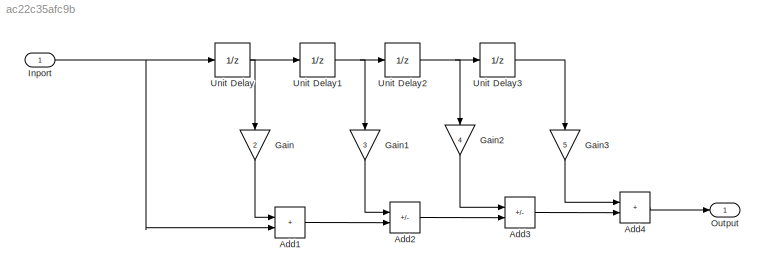
MODEL slx_ac22c35afc9b
KIND model
CONFIG AbsTol = auto
CONFIG EnableMultiTasking = off
CONFIG FixedStep = auto
CONFIG MaxStep = auto
CONFIG MinStep = auto
CONFIG RelTol = 1e-3
CONFIG SampleTimeConstraint = Unconstrained
CONFIG SolverName = VariableStepAuto
CONFIG StartTime = 0.0
CONFIG StopTime = 10.0
BLOCK [Sum] Add1
  IconShape = rectangular
  Ports = [2, 1]
BLOCK [Sum] Add2
  IconShape = rectangular
  Inputs = +-
  Ports = [2, 1]
BLOCK [Sum] Add3
  IconShape = rectangular
  Inputs = +-
  Ports = [2, 1]
BLOCK [Sum] Add4
  IconShape = rectangular
  Ports = [2, 1]
BLOCK [Gain] Gain
  Gain = 2
  NameLocation = right
BLOCK [Gain] Gain1
  Gain = 3
  NameLocation = right
BLOCK [Gain] Gain2
  Gain = 4
  NameLocation = right
BLOCK [Gain] Gain3
  Gain = 5
  NameLocation = right
BLOCK [Inport] Inport
  OutDataTypeStr = double
  PortDimensions = 1
  SampleTime = 0
  SamplingMode = Sample based
  SignalType = real
BLOCK [Outport] Output
  OutDataTypeStr = double
  PortDimensions = 1
  SampleTime = 0
  SamplingMode = Sample based
  SignalType = real
BLOCK [UnitDelay] Unit Delay
  HasFrameUpgradeWarning = on
  SampleTime = -1
BLOCK [UnitDelay] Unit Delay1
  HasFrameUpgradeWarning = on
  SampleTime = -1
BLOCK [UnitDelay] Unit Delay2
  HasFrameUpgradeWarning = on
  SampleTime = -1
BLOCK [UnitDelay] Unit Delay3
  HasFrameUpgradeWarning = on
  SampleTime = -1
LINE Add1:1 -> Add2:2
LINE Add2:1 -> Add3:2
LINE Add3:1 -> Add4:2
LINE Add4:1 -> Output:1
LINE Gain1:1 -> Add2:1
LINE Gain2:1 -> Add3:1
LINE Gain3:1 -> Add4:1
LINE Gain:1 -> Add1:1
NET Inport:1 -> Add1:2, Unit Delay:1
NET Unit Delay1:1 -> Gain1:1, Unit Delay2:1
NET Unit Delay2:1 -> Gain2:1, Unit Delay3:1
LINE Unit Delay3:1 -> Gain3:1
NET Unit Delay:1 -> Gain:1, Unit Delay1:1
note: NET lines group one-source signal fan-out (src -> all destinations, sorted); 1:1 wires keep LINE
